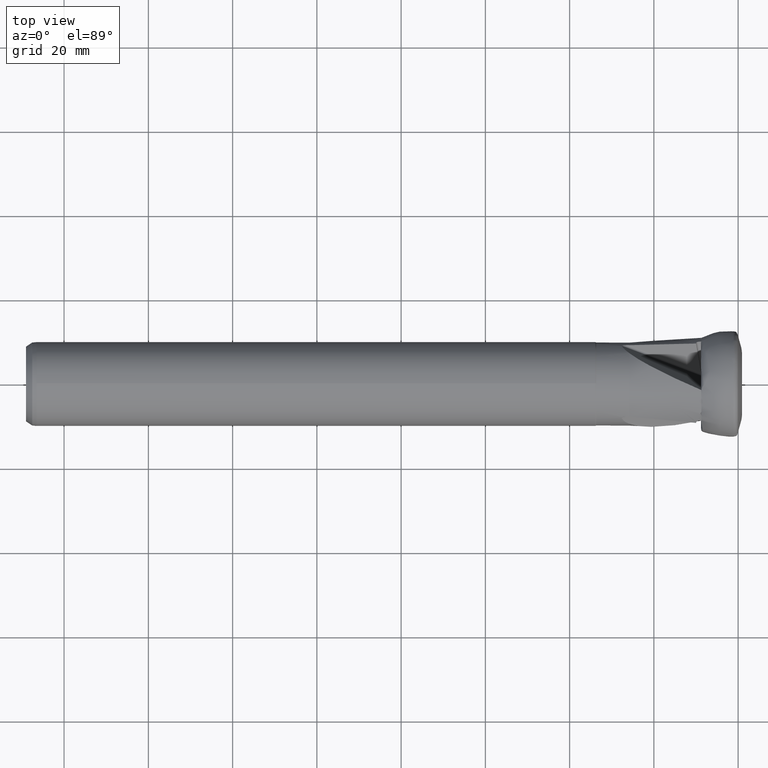
[diagram: clean part render]
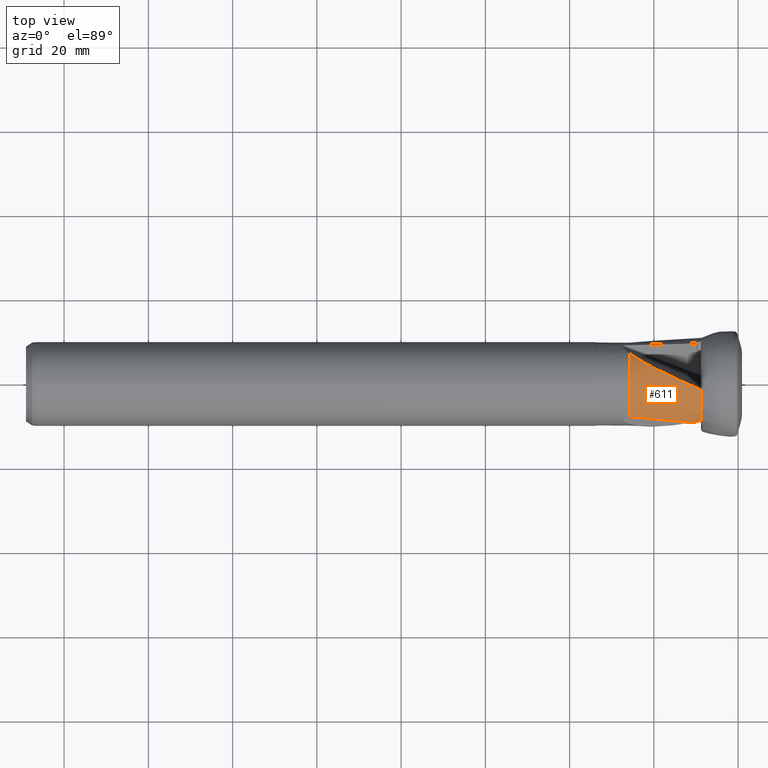
[diagram: same view with one face highlighted and labeled with its STEP entity id]
A machine part, top view. The second image highlights one B-rep face of the part: STEP entity #611.
In plain terms, the highlighted conical surface has half-angle 3.578 deg.
Its self-contained STEP definition (entity closure, byte-faithful):
#6 = CARTESIAN_POINT ( 'NONE',  ( -8.909586692319049200, -7.028107724349100100, 8.406955960610202900 ) ) ;
#101 = CARTESIAN_POINT ( 'NONE',  ( -16.86874251824682600, 1.855739922466798800, 10.84814431742854000 ) ) ;
#187 = B_SPLINE_CURVE_WITH_KNOTS ( 'NONE', 3,
 ( #915, #3637, #3064, #6, #3052, #1814 ),
 .UNSPECIFIED., .F., .F.,
 ( 4, 2, 4 ),
 ( 0.0008221725590539376100, 0.001357682506041569100, 0.001893192453029200900 ),
 .UNSPECIFIED. ) ;
#193 = VERTEX_POINT ( 'NONE', #837 ) ;
#203 = VERTEX_POINT ( 'NONE', #2642 ) ;
#237 = CARTESIAN_POINT ( 'NONE',  ( -9.778036252315066800, -8.972664584161346800, 6.192587790033234000 ) ) ;
#292 = EDGE_CURVE ( 'NONE', #825, #2300, #187, .T. ) ;
#327 = DIRECTION ( 'NONE',  ( 0.0000000000000000000, 0.0000000000000000000, -1.000000000000000000 ) ) ;
#335 = ORIENTED_EDGE ( 'NONE', *, *, #3012, .F. ) ;
#351 = CARTESIAN_POINT ( 'NONE',  ( -25.80000000000002600, -7.847634354999088100, 6.035282514532322100 ) ) ;
#409 = CONICAL_SURFACE ( 'NONE', #1274, 11.01000000000000000, 0.06245388417783789100 ) ;
#451 = VERTEX_POINT ( 'NONE', #2383 ) ;
#527 = CARTESIAN_POINT ( 'NONE',  ( -9.325643166846427700, -8.836354427572636900, 6.433426357310136000 ) ) ;
#550 = ORIENTED_EDGE ( 'NONE', *, *, #1311, .F. ) ;
#590 = ORIENTED_EDGE ( 'NONE', *, *, #2263, .F. ) ;
#611 = ADVANCED_FACE ( 'NONE', ( #2461 ), #409, .T. ) ;
#733 = VERTEX_POINT ( 'NONE', #1863 ) ;
#825 = VERTEX_POINT ( 'NONE', #1617 ) ;
#837 = CARTESIAN_POINT ( 'NONE',  ( -25.80000000000000100, 7.206657879620563800, 6.787789198708425800 ) ) ;
#888 =( BOUNDED_CURVE ( )  B_SPLINE_CURVE ( 3, ( #2741, #910, #3046, #1222 ),
 .UNSPECIFIED., .F., .T. ) 
 B_SPLINE_CURVE_WITH_KNOTS ( ( 4, 4 ),
 ( 2.678956776911849900, 2.697108084029441700 ),
 .UNSPECIFIED. ) 
 CURVE ( )  GEOMETRIC_REPRESENTATION_ITEM ( )  RATIONAL_B_SPLINE_CURVE ( ( 1.000000000000000000, 0.9999725443592819600, 0.9999725443592819600, 1.000000000000000000 ) ) 
 REPRESENTATION_ITEM ( '' )  );
#910 = CARTESIAN_POINT ( 'NONE',  ( -9.982078277733185300, -9.260905812425225000, 5.728370105349371900 ) ) ;
#915 = CARTESIAN_POINT ( 'NONE',  ( -8.740307214642633900, -7.540103344763567300, 7.963556651083519200 ) ) ;
#1079 = CIRCLE ( 'NONE', #2399, 10.96683149249277300 ) ;
#1085 = EDGE_CURVE ( 'NONE', #193, #733, #3853, .T. ) ;
#1222 = CARTESIAN_POINT ( 'NONE',  ( -9.991745607474936000, -9.329494595017060000, 5.614404893091534500 ) ) ;
#1274 = AXIS2_PLACEMENT_3D ( 'NONE', #2456, #2135, #327 ) ;
#1283 = CARTESIAN_POINT ( 'NONE',  ( -22.92936467704586100, 4.987555778449552300, 9.405654221941683000 ) ) ;
#1311 = EDGE_CURVE ( 'NONE', #2408, #2300, #1079, .T. ) ;
#1442 = CARTESIAN_POINT ( 'NONE',  ( -9.969197477330610000, -9.170018293892036700, 5.874835531582316900 ) ) ;
#1576 = CARTESIAN_POINT ( 'NONE',  ( -25.80000000000000100, 0.0000000000000000000, 0.0000000000000000000 ) ) ;
#1598 = DIRECTION ( 'NONE',  ( 1.000000000000000000, 1.223799707454890500E-016, -0.0000000000000000000 ) ) ;
#1617 = CARTESIAN_POINT ( 'NONE',  ( -8.740307214642633900, -7.540103344763567300, 7.963556651083519200 ) ) ;
#1622 = ORIENTED_EDGE ( 'NONE', *, *, #1660, .F. ) ;
#1636 = ORIENTED_EDGE ( 'NONE', *, *, #292, .T. ) ;
#1660 = EDGE_CURVE ( 'NONE', #825, #451, #3371, .T. ) ;
#1680 =( BOUNDED_CURVE ( )  B_SPLINE_CURVE ( 3, ( #1850, #3670, #2163, #351 ),
 .UNSPECIFIED., .F., .F. ) 
 B_SPLINE_CURVE_WITH_KNOTS ( ( 4, 4 ),
 ( 2.685700531748278100, 2.733482246654115800 ),
 .UNSPECIFIED. ) 
 CURVE ( )  GEOMETRIC_REPRESENTATION_ITEM ( )  RATIONAL_B_SPLINE_CURVE ( ( 1.000000000000000000, 0.9998097513593796600, 0.9998097513593796600, 1.000000000000000000 ) ) 
 REPRESENTATION_ITEM ( '' )  );
#1685 = B_SPLINE_CURVE_WITH_KNOTS ( 'NONE', 3,
 ( #3563, #1442, #3854, #2044, #237, #2362, #527, #2668 ),
 .UNSPECIFIED., .F., .F.,
 ( 4, 2, 2, 4 ),
 ( 2.453269466693398700E-018, 0.0003139173445559089600, 0.0006278346891118155400, 0.001255669378223630200 ),
 .UNSPECIFIED. ) ;
#1687 = DIRECTION ( 'NONE',  ( 1.000000000000000000, 1.223799707454890500E-016, -0.0000000000000000000 ) ) ;
#1814 = CARTESIAN_POINT ( 'NONE',  ( -8.740307214642633900, -6.784107999846118500, 8.616685652334961500 ) ) ;
#1841 = AXIS2_PLACEMENT_3D ( 'NONE', #3427, #1598, #3715 ) ;
#1850 = CARTESIAN_POINT ( 'NONE',  ( -9.991745607474936000, -9.329494595017060000, 5.614404893091534500 ) ) ;
#1863 = CARTESIAN_POINT ( 'NONE',  ( -25.80000000000002600, -7.847634354999088100, 6.035282514532322100 ) ) ;
#1869 = DIRECTION ( 'NONE',  ( 0.0000000000000000000, 0.0000000000000000000, -1.000000000000000000 ) ) ;
#1978 = CARTESIAN_POINT ( 'NONE',  ( -9.114387545318901800, -8.856582344453752100, 6.428047215246110100 ) ) ;
#2004 = EDGE_CURVE ( 'NONE', #203, #2752, #1685, .T. ) ;
#2044 = CARTESIAN_POINT ( 'NONE',  ( -9.844594368013652300, -9.016877786761110500, 6.120963803916489500 ) ) ;
#2133 = CARTESIAN_POINT ( 'NONE',  ( -8.740307214642633900, -6.784107999846118500, 8.616685652334961500 ) ) ;
#2135 = DIRECTION ( 'NONE',  ( 1.000000000000000000, -0.0000000000000000000, -0.0000000000000000000 ) ) ;
#2163 = CARTESIAN_POINT ( 'NONE',  ( -20.80416452359813900, -8.335404701845920500, 5.913510481085320500 ) ) ;
#2220 = CARTESIAN_POINT ( 'NONE',  ( -8.740307214642635700, -1.608908404413212300, 10.84817066287859600 ) ) ;
#2236 = AXIS2_PLACEMENT_3D ( 'NONE', #1576, #3692, #1869 ) ;
#2263 = EDGE_CURVE ( 'NONE', #203, #3271, #888, .T. ) ;
#2300 = VERTEX_POINT ( 'NONE', #2133 ) ;
#2362 = CARTESIAN_POINT ( 'NONE',  ( -9.539305823287669700, -8.867960768168911700, 6.368338509338860500 ) ) ;
#2383 = CARTESIAN_POINT ( 'NONE',  ( -8.740307214642824000, -8.892368073871205400, 6.418503176248973000 ) ) ;
#2399 = AXIS2_PLACEMENT_3D ( 'NONE', #3510, #1687, #3805 ) ;
#2408 = VERTEX_POINT ( 'NONE', #2476 ) ;
#2456 = CARTESIAN_POINT ( 'NONE',  ( -8.050000000000041600, 0.0000000000000000000, 0.0000000000000000000 ) ) ;
#2458 = ORIENTED_EDGE ( 'NONE', *, *, #2004, .T. ) ;
#2461 = FACE_OUTER_BOUND ( 'NONE', #3547, .T. ) ;
#2476 = CARTESIAN_POINT ( 'NONE',  ( -8.740307214642635700, -1.608908404413212300, 10.84817066287859600 ) ) ;
#2592 = EDGE_CURVE ( 'NONE', #193, #2408, #3161, .T. ) ;
#2642 = CARTESIAN_POINT ( 'NONE',  ( -9.977108450534821300, -9.225838483728177100, 5.784881178897809800 ) ) ;
#2668 = CARTESIAN_POINT ( 'NONE',  ( -9.114387545318901800, -8.856582344453752100, 6.428047215246110100 ) ) ;
#2721 = ORIENTED_EDGE ( 'NONE', *, *, #1085, .T. ) ;
#2741 = CARTESIAN_POINT ( 'NONE',  ( -9.977108450534821300, -9.225838483728177100, 5.784881178897809800 ) ) ;
#2752 = VERTEX_POINT ( 'NONE', #3575 ) ;
#2788 = CARTESIAN_POINT ( 'NONE',  ( -25.80000000000000100, 7.206657879620563800, 6.787789198708425800 ) ) ;
#2908 =( BOUNDED_CURVE ( )  B_SPLINE_CURVE ( 3, ( #3500, #3210, #3795, #1978 ),
 .UNSPECIFIED., .F., .F. ) 
 B_SPLINE_CURVE_WITH_KNOTS ( ( 4, 4 ),
 ( 2.721170287014188700, 2.722244440893388800 ),
 .UNSPECIFIED. ) 
 CURVE ( )  GEOMETRIC_REPRESENTATION_ITEM ( )  RATIONAL_B_SPLINE_CURVE ( ( 1.000000000000000000, 0.9999999038494558100, 0.9999999038494558100, 1.000000000000000000 ) ) 
 REPRESENTATION_ITEM ( '' )  );
#3012 = EDGE_CURVE ( 'NONE', #3271, #733, #1680, .T. ) ;
#3046 = CARTESIAN_POINT ( 'NONE',  ( -9.986957464007826200, -9.295458798196360600, 5.671543116526175200 ) ) ;
#3052 = CARTESIAN_POINT ( 'NONE',  ( -8.847557185325097600, -6.891679902988762800, 8.523455740213487200 ) ) ;
#3064 = CARTESIAN_POINT ( 'NONE',  ( -8.913183761091085300, -7.298206781267474200, 8.173276911109795200 ) ) ;
#3161 =( BOUNDED_CURVE ( )  B_SPLINE_CURVE ( 3, ( #2788, #1283, #101, #2220 ),
 .UNSPECIFIED., .F., .F. ) 
 B_SPLINE_CURVE_WITH_KNOTS ( ( 4, 4 ),
 ( 3.477441010317361400, 4.344822891366477300 ),
 .UNSPECIFIED. ) 
 CURVE ( )  GEOMETRIC_REPRESENTATION_ITEM ( )  RATIONAL_B_SPLINE_CURVE ( ( 1.000000000000000000, 0.9382806109319690200, 0.9382806109319690200, 1.000000000000000000 ) ) 
 REPRESENTATION_ITEM ( '' )  );
#3177 = CARTESIAN_POINT ( 'NONE',  ( -9.991745607474936000, -9.329494595017060000, 5.614404893091534500 ) ) ;
#3210 = CARTESIAN_POINT ( 'NONE',  ( -8.865150662804673200, -8.880436067877997900, 6.421694654597433600 ) ) ;
#3271 = VERTEX_POINT ( 'NONE', #3177 ) ;
#3371 = CIRCLE ( 'NONE', #1841, 10.96683149249277300 ) ;
#3427 = CARTESIAN_POINT ( 'NONE',  ( -8.740307214642635700, -2.498948196336651500E-015, 0.0000000000000000000 ) ) ;
#3500 = CARTESIAN_POINT ( 'NONE',  ( -8.740307214642824000, -8.892368073871205400, 6.418503176248973000 ) ) ;
#3510 = CARTESIAN_POINT ( 'NONE',  ( -8.740307214642635700, -2.498948196336651500E-015, 0.0000000000000000000 ) ) ;
#3547 = EDGE_LOOP ( 'NONE', ( #550, #3920, #2721, #335, #590, #2458, #3838, #1622, #1636 ) ) ;
#3563 = CARTESIAN_POINT ( 'NONE',  ( -9.977108450534821300, -9.225838483728177100, 5.784881178897809800 ) ) ;
#3575 = CARTESIAN_POINT ( 'NONE',  ( -9.114387545318901800, -8.856582344453752100, 6.428047215246110100 ) ) ;
#3637 = CARTESIAN_POINT ( 'NONE',  ( -8.853278383119150200, -7.434764267621053700, 8.053565481219520100 ) ) ;
#3670 = CARTESIAN_POINT ( 'NONE',  ( -15.53374370236342200, -8.829452107032391700, 5.773191245061400200 ) ) ;
#3692 = DIRECTION ( 'NONE',  ( 1.000000000000000000, -0.0000000000000000000, -0.0000000000000000000 ) ) ;
#3715 = DIRECTION ( 'NONE',  ( -1.581790945875564300E-016, 1.000000000000000000, 0.0000000000000000000 ) ) ;
#3721 = EDGE_CURVE ( 'NONE', #451, #2752, #2908, .T. ) ;
#3795 = CARTESIAN_POINT ( 'NONE',  ( -8.989844118352765500, -8.868507490258570800, 6.424876001235698900 ) ) ;
#3805 = DIRECTION ( 'NONE',  ( -1.581790945875564300E-016, 1.000000000000000000, 0.0000000000000000000 ) ) ;
#3838 = ORIENTED_EDGE ( 'NONE', *, *, #3721, .F. ) ;
#3853 = CIRCLE ( 'NONE', #2236, 9.899999999999996800 ) ;
#3854 = CARTESIAN_POINT ( 'NONE',  ( -9.940240070436109600, -9.115878735855517300, 5.961602929684414000 ) ) ;
#3920 = ORIENTED_EDGE ( 'NONE', *, *, #2592, .F. ) ;